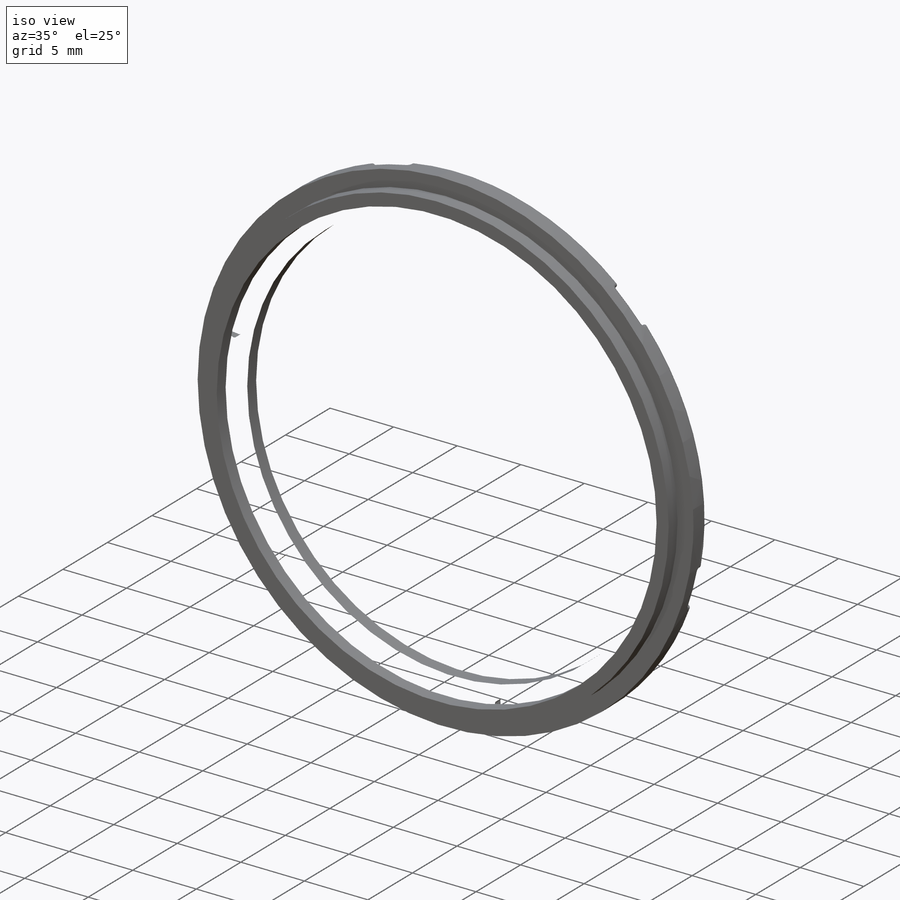
[diagram: iso view]
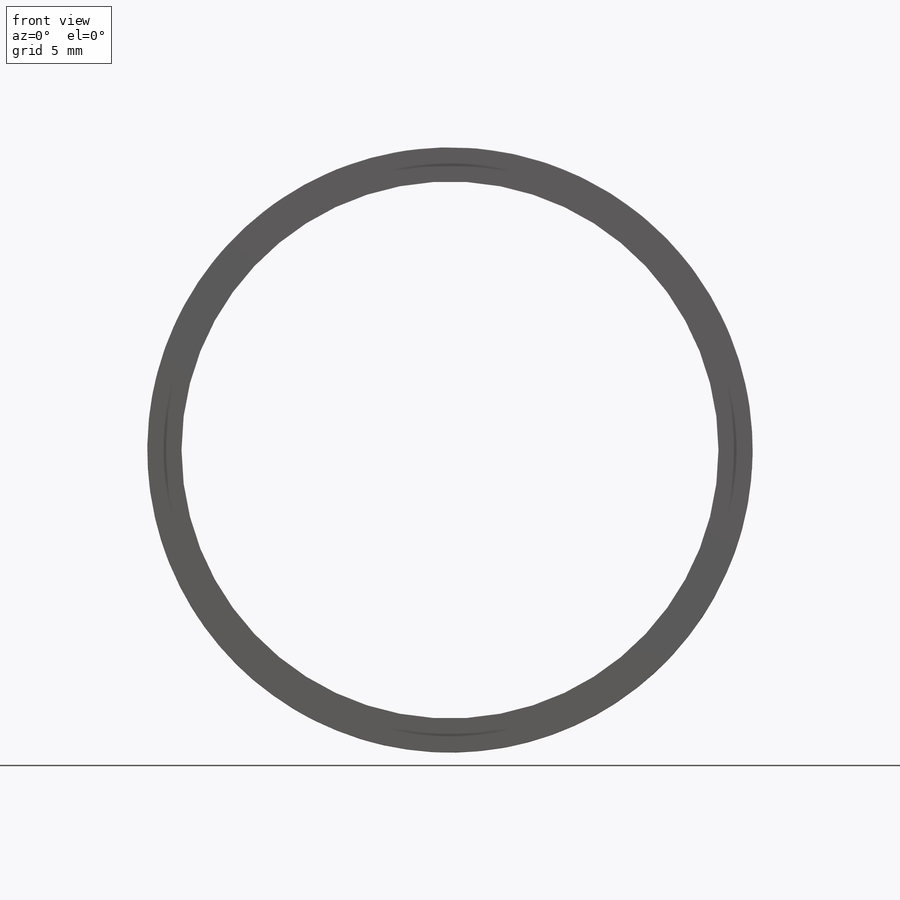
[diagram: front view]
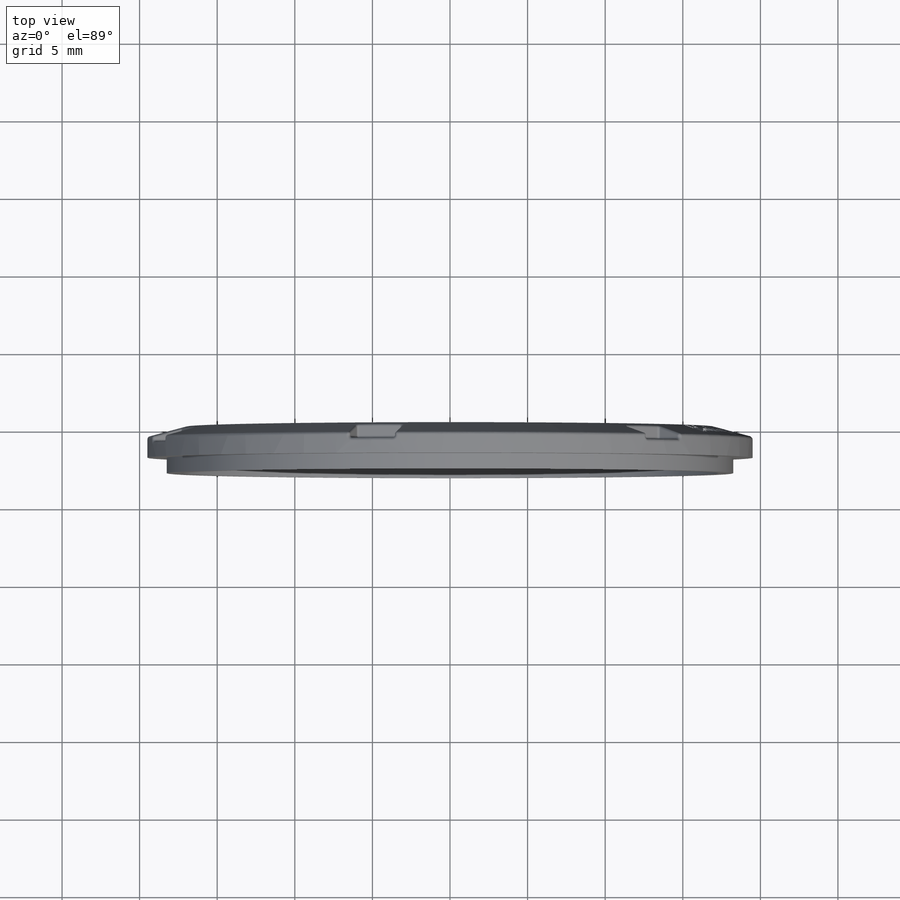
[diagram: top view]
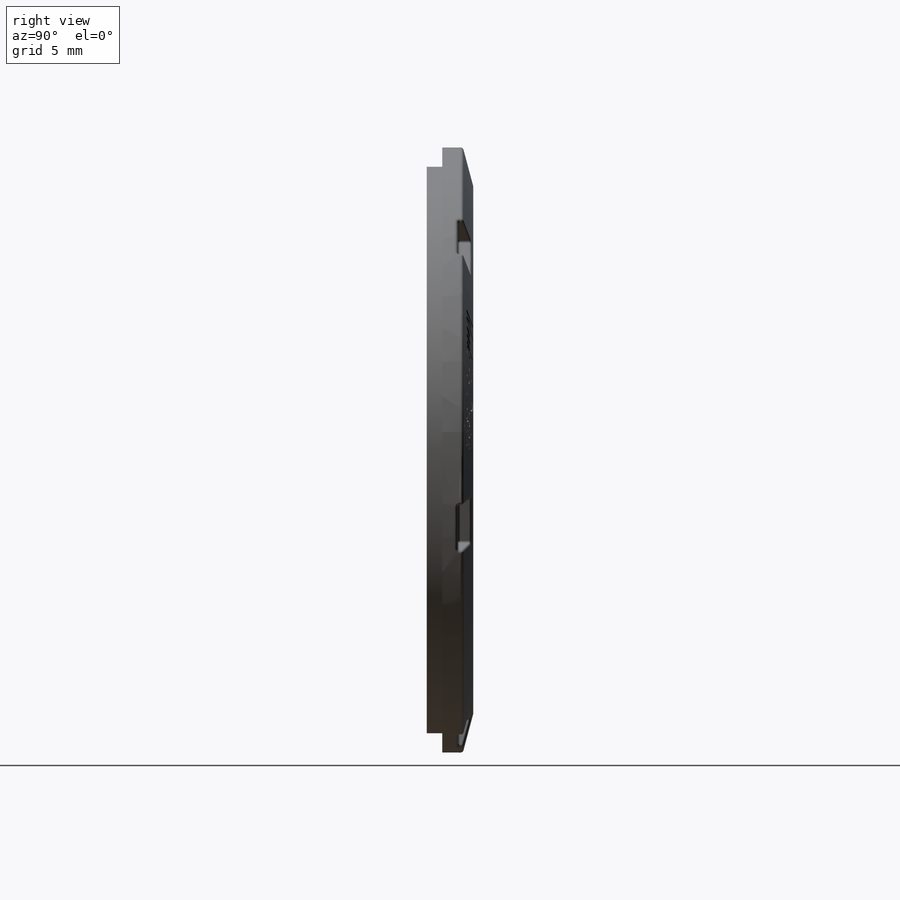
[diagram: right view]
SOLIDWORKS PART (.sldprt)
format: sldprt  version: not decoded by parser v0  size: 1,465,856 bytes
history: native  units: mm
features: sketch x6, cut_extrude x3, extrude x2, fillet x2, material x1, chamfer x1, pattern_circular x1, revolve x1 (+11 scaffold rows collapsed)
feature tree (28):
  scaffold x11  (default folders/planes/origin — collapsed)
  material  "Material <not specified>"
  sketch  "Sketch1"  dims[D1=39.0mm D2=32.6mm]
  extrude  "Boss-Extrude1"  Depth=2mm
  sketch  "Sketch2"  dims[D1=34.6mm]
  cut_extrude  "Cut-Extrude1"  Depth=1mm
  sketch  "Sketch3"  dims[D1=36.5mm]
  extrude  "Boss-Extrude2"  Depth=1mm
  chamfer  "Chamfer1"  Distance=2.5mm Angle=15deg
  sketch  "Sketch4"  dims[c1.D1=~29.86746mm c2.D1=45.0deg c2.D2=3.0mm c2.D3=4.0mm]
  cut_extrude  "Cut-Extrude2"  Depth=1mm
  fillet  "Fillet1"  Radius=0.15mm
  pattern_circular  "CirPattern1"  Count=6 Angle=360deg
  fillet  "Fillet2"  Radius=0.2mm
  sketch  "Sketch6"  dims[D1=37.2mm]
  cut_extrude  "Cut-Extrude7"  Depth=0.3mm
  sketch  "Sketch7"  dims[D1=1.0mm D2=1.5mm]
  revolve  "Revolve1"  Angle=360deg
decode coverage: 16 of 16 modeling features carry decoded parameters
note: ~ marks probable driven/reference dimensions
note: suppression state not decoded; provenance and decode notes live in map.json
